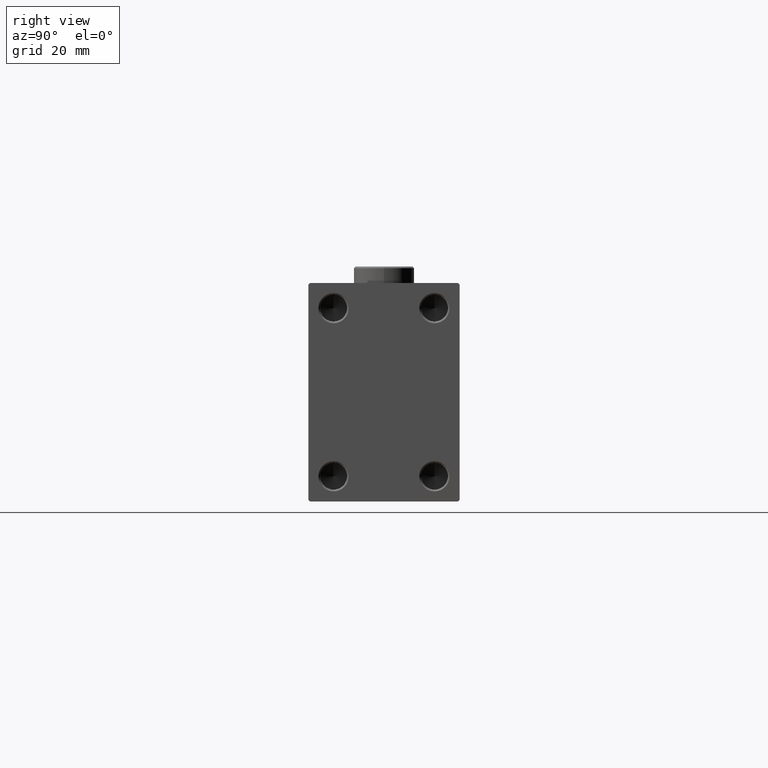
[diagram: clean part render]
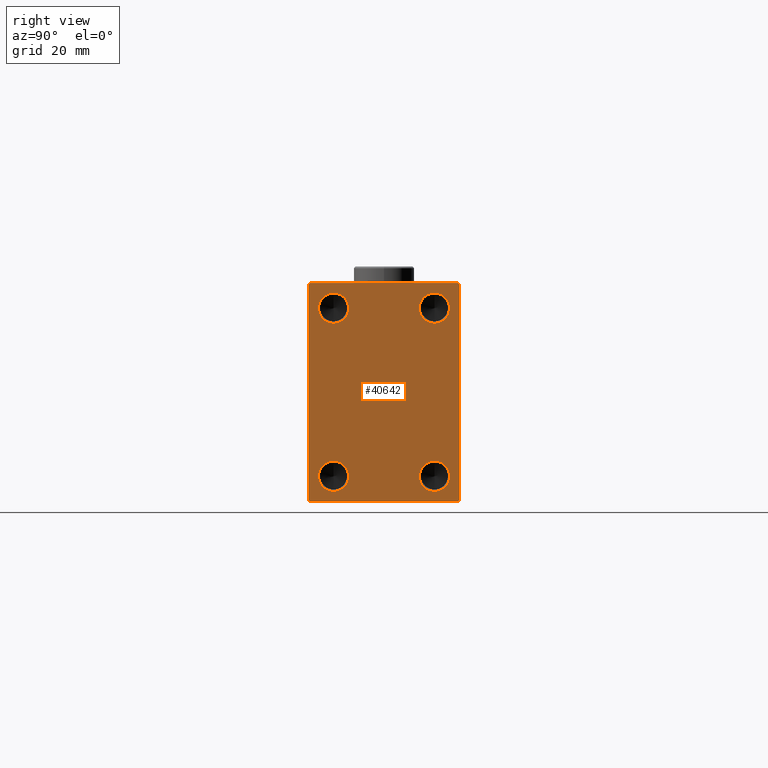
[diagram: same view with one face highlighted and labeled with its STEP entity id]
A machine part, right view. The second image highlights one B-rep face of the part: STEP entity #40642.
In plain terms, the highlighted planar face has unit normal (1, 0, 0).
Its self-contained STEP definition (entity closure, byte-faithful):
#227 = CARTESIAN_POINT ( 'NONE',  ( 170.0000000000000000, 15.00000000000000178, -25.00000000000000000 ) ) ;
#402 = CARTESIAN_POINT ( 'NONE',  ( 170.0000000000000000, -27.25000000000060041, 27.24999999999908340 ) ) ;
#772 = VECTOR ( 'NONE', #21354, 1000.000000000000000 ) ;
#846 = ORIENTED_EDGE ( 'NONE', *, *, #13626, .T. ) ;
#989 = EDGE_CURVE ( 'NONE', #36052, #36576, #40063, .T. ) ;
#1169 = EDGE_CURVE ( 'NONE', #31616, #21547, #7164, .T. ) ;
#2415 = VECTOR ( 'NONE', #23247, 1000.000000000000000 ) ;
#2634 = VERTEX_POINT ( 'NONE', #11184 ) ;
#3447 = LINE ( 'NONE', #17634, #33705 ) ;
#3772 = CARTESIAN_POINT ( 'NONE',  ( 170.0000000000000000, 27.24999999999999289, 27.24999999999999289 ) ) ;
#3856 = LINE ( 'NONE', #4314, #13024 ) ;
#4314 = CARTESIAN_POINT ( 'NONE',  ( 170.0000000000000000, 22.50000000000000711, -32.50000000000000711 ) ) ;
#5713 = DIRECTION ( 'NONE',  ( 0.000000000000000000, 0.000000000000000000, -1.000000000000000000 ) ) ;
#5763 = CARTESIAN_POINT ( 'NONE',  ( 170.0000000000000000, -15.00000000000000000, -29.49999999999998579 ) ) ;
#5980 = FACE_BOUND ( 'NONE', #38103, .T. ) ;
#6054 = AXIS2_PLACEMENT_3D ( 'NONE', #227, #24436, #17906 ) ;
#6245 = LINE ( 'NONE', #30903, #2415 ) ;
#6698 = EDGE_CURVE ( 'NONE', #43241, #29822, #14937, .T. ) ;
#7164 = LINE ( 'NONE', #402, #772 ) ;
#7644 = ORIENTED_EDGE ( 'NONE', *, *, #1169, .T. ) ;
#7791 = LINE ( 'NONE', #32889, #15255 ) ;
#9790 = EDGE_CURVE ( 'NONE', #24223, #30122, #6245, .T. ) ;
#9852 = VERTEX_POINT ( 'NONE', #35323 ) ;
#10266 = ORIENTED_EDGE ( 'NONE', *, *, #29411, .T. ) ;
#10765 = CARTESIAN_POINT ( 'NONE',  ( 170.0000000000000000, -15.00000000000000000, 25.00000000000000000 ) ) ;
#10791 = DIRECTION ( 'NONE',  ( 1.000000000000000000, -0.000000000000000000, -0.000000000000000000 ) ) ;
#10897 = EDGE_CURVE ( 'NONE', #28673, #41686, #42603, .T. ) ;
#11184 = CARTESIAN_POINT ( 'NONE',  ( 170.0000000000000000, -15.00000000000000000, -20.50000000000001776 ) ) ;
#11218 = DIRECTION ( 'NONE',  ( -0.000000000000000000, -0.7071067811865474617, 0.7071067811865474617 ) ) ;
#11230 = ORIENTED_EDGE ( 'NONE', *, *, #10897, .F. ) ;
#11346 = ORIENTED_EDGE ( 'NONE', *, *, #30066, .T. ) ;
#12336 = CIRCLE ( 'NONE', #16049, 4.499999999999976019 ) ;
#13024 = VECTOR ( 'NONE', #21780, 1000.000000000000000 ) ;
#13039 = CARTESIAN_POINT ( 'NONE',  ( 170.0000000000000000, -21.99999999999997868, 32.49999999999998579 ) ) ;
#13213 = EDGE_LOOP ( 'NONE', ( #14139, #38282 ) ) ;
#13389 = CARTESIAN_POINT ( 'NONE',  ( 170.0000000000000000, -15.00000000000000000, 25.00000000000000000 ) ) ;
#13626 = EDGE_CURVE ( 'NONE', #9852, #36178, #39619, .T. ) ;
#14093 = EDGE_CURVE ( 'NONE', #36576, #31616, #3447, .T. ) ;
#14139 = ORIENTED_EDGE ( 'NONE', *, *, #17817, .F. ) ;
#14194 = ORIENTED_EDGE ( 'NONE', *, *, #989, .T. ) ;
#14937 = CIRCLE ( 'NONE', #20157, 4.499999999999976019 ) ;
#15255 = VECTOR ( 'NONE', #33117, 1000.000000000000000 ) ;
#16049 = AXIS2_PLACEMENT_3D ( 'NONE', #31954, #10791, #24980 ) ;
#16226 = ORIENTED_EDGE ( 'NONE', *, *, #9790, .T. ) ;
#16581 = VERTEX_POINT ( 'NONE', #5763 ) ;
#16673 = FACE_BOUND ( 'NONE', #13213, .T. ) ;
#16758 = EDGE_CURVE ( 'NONE', #16581, #2634, #45717, .T. ) ;
#17233 = DIRECTION ( 'NONE',  ( 1.000000000000000000, -0.000000000000000000, -0.000000000000000000 ) ) ;
#17634 = CARTESIAN_POINT ( 'NONE',  ( 170.0000000000000000, 22.50000000000000000, 32.49999999999999289 ) ) ;
#17817 = EDGE_CURVE ( 'NONE', #42592, #29815, #26433, .T. ) ;
#17906 = DIRECTION ( 'NONE',  ( 0.000000000000000000, 0.000000000000000000, -1.000000000000000000 ) ) ;
#18029 = EDGE_CURVE ( 'NONE', #21547, #9852, #7791, .T. ) ;
#18623 = CARTESIAN_POINT ( 'NONE',  ( 170.0000000000000000, 21.99999999999999289, -32.50000000000000711 ) ) ;
#18803 = DIRECTION ( 'NONE',  ( 0.000000000000000000, 0.000000000000000000, -1.000000000000000000 ) ) ;
#18974 = VECTOR ( 'NONE', #38779, 1000.000000000000000 ) ;
#19440 = CARTESIAN_POINT ( 'NONE',  ( 170.0000000000000000, 15.00000000000000178, 29.49999999999998934 ) ) ;
#20157 = AXIS2_PLACEMENT_3D ( 'NONE', #43943, #26016, #18803 ) ;
#20180 = EDGE_CURVE ( 'NONE', #41686, #28673, #41018, .T. ) ;
#20599 = ORIENTED_EDGE ( 'NONE', *, *, #38743, .F. ) ;
#20642 = DIRECTION ( 'NONE',  ( 0.000000000000000000, 0.000000000000000000, -1.000000000000000000 ) ) ;
#21037 = AXIS2_PLACEMENT_3D ( 'NONE', #27487, #31672, #42166 ) ;
#21048 = CIRCLE ( 'NONE', #32188, 4.499999999999976019 ) ;
#21338 = AXIS2_PLACEMENT_3D ( 'NONE', #35148, #17233, #42158 ) ;
#21354 = DIRECTION ( 'NONE',  ( 0.000000000000000000, -0.7071067811865279218, -0.7071067811865672237 ) ) ;
#21547 = VERTEX_POINT ( 'NONE', #37519 ) ;
#21780 = DIRECTION ( 'NONE',  ( 0.000000000000000000, -1.067522139062650425E-16, 1.000000000000000000 ) ) ;
#22831 = CIRCLE ( 'NONE', #21338, 4.499999999999976019 ) ;
#23247 = DIRECTION ( 'NONE',  ( -0.000000000000000000, 0.7071067811865279218, 0.7071067811865672237 ) ) ;
#23397 = EDGE_CURVE ( 'NONE', #29815, #42592, #21048, .T. ) ;
#23529 = ORIENTED_EDGE ( 'NONE', *, *, #20180, .F. ) ;
#23558 = EDGE_LOOP ( 'NONE', ( #25513, #7644, #33847, #846, #11346, #16226, #10266, #14194 ) ) ;
#24205 = AXIS2_PLACEMENT_3D ( 'NONE', #13389, #27580, #41794 ) ;
#24223 = VERTEX_POINT ( 'NONE', #18623 ) ;
#24436 = DIRECTION ( 'NONE',  ( 1.000000000000000000, -0.000000000000000000, -0.000000000000000000 ) ) ;
#24954 = DIRECTION ( 'NONE',  ( 1.000000000000000000, -0.000000000000000000, -0.000000000000000000 ) ) ;
#24980 = DIRECTION ( 'NONE',  ( 0.000000000000000000, 0.000000000000000000, -1.000000000000000000 ) ) ;
#25513 = ORIENTED_EDGE ( 'NONE', *, *, #14093, .T. ) ;
#26016 = DIRECTION ( 'NONE',  ( 1.000000000000000000, -0.000000000000000000, -0.000000000000000000 ) ) ;
#26296 = CARTESIAN_POINT ( 'NONE',  ( 170.0000000000000000, 22.50000000000000000, 31.99999999999999289 ) ) ;
#26433 = CIRCLE ( 'NONE', #24205, 4.499999999999976019 ) ;
#27184 = DIRECTION ( 'NONE',  ( 0.000000000000000000, -1.000000000000000000, -1.541976423090495633E-16 ) ) ;
#27487 = CARTESIAN_POINT ( 'NONE',  ( 170.0000000000000000, 15.00000000000000178, -25.00000000000000000 ) ) ;
#27580 = DIRECTION ( 'NONE',  ( 1.000000000000000000, -0.000000000000000000, -0.000000000000000000 ) ) ;
#28007 = CARTESIAN_POINT ( 'NONE',  ( 170.0000000000000000, -15.00000000000000000, 29.49999999999998579 ) ) ;
#28305 = PLANE ( 'NONE',  #44452 ) ;
#28499 = CARTESIAN_POINT ( 'NONE',  ( 170.0000000000000000, 22.00000000000000000, 32.49999999999999289 ) ) ;
#28673 = VERTEX_POINT ( 'NONE', #31091 ) ;
#29411 = EDGE_CURVE ( 'NONE', #30122, #36052, #3856, .T. ) ;
#29815 = VERTEX_POINT ( 'NONE', #30293 ) ;
#29822 = VERTEX_POINT ( 'NONE', #38426 ) ;
#30047 = EDGE_LOOP ( 'NONE', ( #11230, #23529 ) ) ;
#30066 = EDGE_CURVE ( 'NONE', #36178, #24223, #34820, .T. ) ;
#30122 = VERTEX_POINT ( 'NONE', #42522 ) ;
#30293 = CARTESIAN_POINT ( 'NONE',  ( 170.0000000000000000, -15.00000000000000000, 20.50000000000001776 ) ) ;
#30824 = CARTESIAN_POINT ( 'NONE',  ( 170.0000000000000000, -15.00000000000000000, -25.00000000000000000 ) ) ;
#30870 = DIRECTION ( 'NONE',  ( 1.000000000000000000, 0.000000000000000000, 0.000000000000000000 ) ) ;
#30903 = CARTESIAN_POINT ( 'NONE',  ( 170.0000000000000000, 27.25000000000061817, -27.24999999999910472 ) ) ;
#30921 = CARTESIAN_POINT ( 'NONE',  ( 170.0000000000000000, -21.99999999999996447, -32.50000000000000711 ) ) ;
#31091 = CARTESIAN_POINT ( 'NONE',  ( 170.0000000000000000, 15.00000000000000178, -20.50000000000001421 ) ) ;
#31483 = AXIS2_PLACEMENT_3D ( 'NONE', #30824, #44798, #5713 ) ;
#31616 = VERTEX_POINT ( 'NONE', #13039 ) ;
#31672 = DIRECTION ( 'NONE',  ( 1.000000000000000000, -0.000000000000000000, -0.000000000000000000 ) ) ;
#31954 = CARTESIAN_POINT ( 'NONE',  ( 170.0000000000000000, 15.00000000000000178, 25.00000000000000000 ) ) ;
#32188 = AXIS2_PLACEMENT_3D ( 'NONE', #10765, #24954, #43329 ) ;
#32718 = VECTOR ( 'NONE', #11218, 1000.000000000000114 ) ;
#32889 = CARTESIAN_POINT ( 'NONE',  ( 170.0000000000000000, -22.49999999999999289, 32.49999999999998579 ) ) ;
#33071 = CARTESIAN_POINT ( 'NONE',  ( 170.0000000000000000, -27.24999999999921840, -27.25000000000110845 ) ) ;
#33117 = DIRECTION ( 'NONE',  ( 0.000000000000000000, 0.000000000000000000, -1.000000000000000000 ) ) ;
#33705 = VECTOR ( 'NONE', #27184, 1000.000000000000000 ) ;
#33847 = ORIENTED_EDGE ( 'NONE', *, *, #18029, .T. ) ;
#34589 = CARTESIAN_POINT ( 'NONE',  ( 170.0000000000000000, -22.49999999999999289, -32.50000000000000711 ) ) ;
#34592 = FACE_BOUND ( 'NONE', #44666, .T. ) ;
#34820 = LINE ( 'NONE', #34589, #18974 ) ;
#35148 = CARTESIAN_POINT ( 'NONE',  ( 170.0000000000000000, -15.00000000000000000, -25.00000000000000000 ) ) ;
#35323 = CARTESIAN_POINT ( 'NONE',  ( 170.0000000000000000, -22.49999999999999289, -32.00000000000001421 ) ) ;
#35711 = EDGE_CURVE ( 'NONE', #29822, #43241, #12336, .T. ) ;
#36052 = VERTEX_POINT ( 'NONE', #26296 ) ;
#36111 = DIRECTION ( 'NONE',  ( -0.000000000000000000, 0.7071067811865721087, -0.7071067811865230368 ) ) ;
#36178 = VERTEX_POINT ( 'NONE', #30921 ) ;
#36576 = VERTEX_POINT ( 'NONE', #28499 ) ;
#37050 = ORIENTED_EDGE ( 'NONE', *, *, #6698, .F. ) ;
#37519 = CARTESIAN_POINT ( 'NONE',  ( 170.0000000000000000, -22.49999999999999289, 31.99999999999995737 ) ) ;
#37849 = CARTESIAN_POINT ( 'NONE',  ( 170.0000000000000000, 0.000000000000000000, 0.000000000000000000 ) ) ;
#38037 = CARTESIAN_POINT ( 'NONE',  ( 170.0000000000000000, 15.00000000000000178, -29.49999999999998934 ) ) ;
#38103 = EDGE_LOOP ( 'NONE', ( #37050, #38709 ) ) ;
#38282 = ORIENTED_EDGE ( 'NONE', *, *, #23397, .F. ) ;
#38426 = CARTESIAN_POINT ( 'NONE',  ( 170.0000000000000000, 15.00000000000000178, 20.50000000000001421 ) ) ;
#38546 = FACE_BOUND ( 'NONE', #30047, .T. ) ;
#38709 = ORIENTED_EDGE ( 'NONE', *, *, #35711, .F. ) ;
#38743 = EDGE_CURVE ( 'NONE', #2634, #16581, #22831, .T. ) ;
#38779 = DIRECTION ( 'NONE',  ( 0.000000000000000000, 1.000000000000000000, 0.000000000000000000 ) ) ;
#39619 = LINE ( 'NONE', #33071, #45614 ) ;
#40063 = LINE ( 'NONE', #3772, #32718 ) ;
#40642 = ADVANCED_FACE ( 'NONE', ( #5980, #16673, #34592, #38546, #42070 ), #28305, .T. ) ;
#41018 = CIRCLE ( 'NONE', #6054, 4.499999999999976019 ) ;
#41686 = VERTEX_POINT ( 'NONE', #38037 ) ;
#41794 = DIRECTION ( 'NONE',  ( 0.000000000000000000, 0.000000000000000000, -1.000000000000000000 ) ) ;
#42070 = FACE_OUTER_BOUND ( 'NONE', #23558, .T. ) ;
#42158 = DIRECTION ( 'NONE',  ( 0.000000000000000000, 0.000000000000000000, -1.000000000000000000 ) ) ;
#42166 = DIRECTION ( 'NONE',  ( 0.000000000000000000, 0.000000000000000000, -1.000000000000000000 ) ) ;
#42522 = CARTESIAN_POINT ( 'NONE',  ( 170.0000000000000000, 22.50000000000000711, -31.99999999999997868 ) ) ;
#42592 = VERTEX_POINT ( 'NONE', #28007 ) ;
#42603 = CIRCLE ( 'NONE', #21037, 4.499999999999976019 ) ;
#43241 = VERTEX_POINT ( 'NONE', #19440 ) ;
#43329 = DIRECTION ( 'NONE',  ( 0.000000000000000000, 0.000000000000000000, -1.000000000000000000 ) ) ;
#43943 = CARTESIAN_POINT ( 'NONE',  ( 170.0000000000000000, 15.00000000000000178, 25.00000000000000000 ) ) ;
#44452 = AXIS2_PLACEMENT_3D ( 'NONE', #37849, #30870, #20642 ) ;
#44666 = EDGE_LOOP ( 'NONE', ( #20599, #44891 ) ) ;
#44798 = DIRECTION ( 'NONE',  ( 1.000000000000000000, -0.000000000000000000, -0.000000000000000000 ) ) ;
#44891 = ORIENTED_EDGE ( 'NONE', *, *, #16758, .F. ) ;
#45614 = VECTOR ( 'NONE', #36111, 1000.000000000000000 ) ;
#45717 = CIRCLE ( 'NONE', #31483, 4.499999999999976019 ) ;